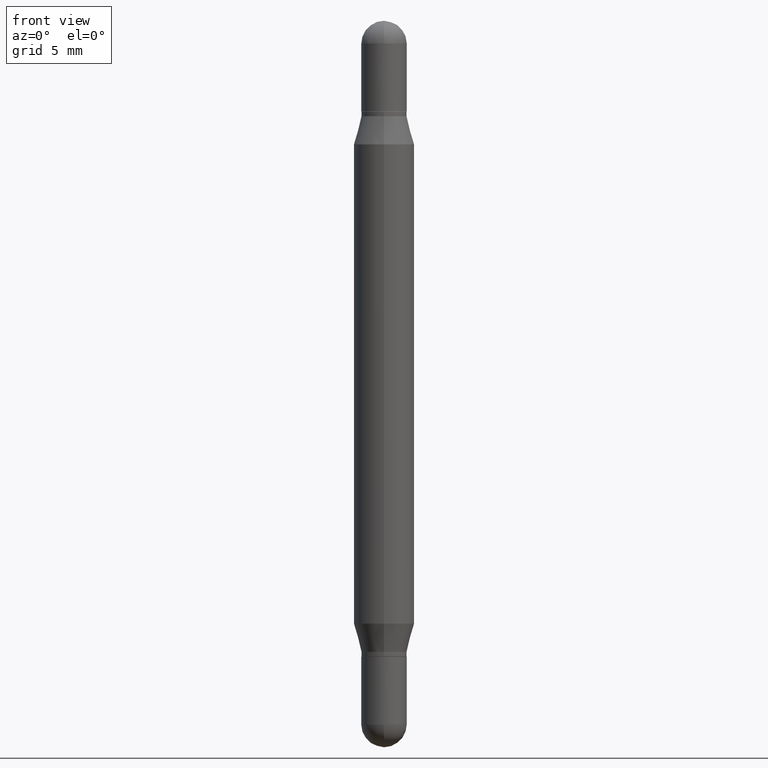
[diagram: clean part render]
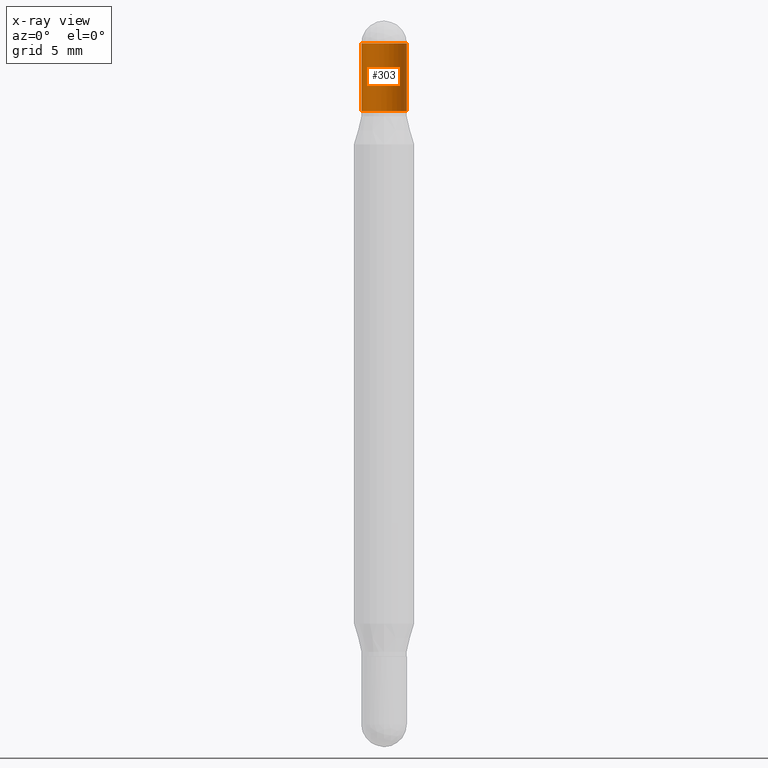
[diagram: x-ray — body ghosted, one internal face saturated and labeled with its STEP entity id]
A machine part, front view, then the same camera in x-ray: the body is ghosted and one INTERNAL B-rep face — a face not visible from any outside direction — is saturated and labeled: STEP entity #303.
In plain terms, the highlighted cylindrical surface (edge-blend (fillet) strip) has radius 1.1913 mm, axis along (-0, -0, -1).
Its self-contained STEP definition (entity closure, byte-faithful):
#9 = EDGE_CURVE ( 'NONE', #516, #371, #322, .T. ) ;
#32 = CYLINDRICAL_SURFACE ( 'NONE', #504, 0.04689999999999999725 ) ;
#59 = LINE ( 'NONE', #69, #292 ) ;
#69 = CARTESIAN_POINT ( 'NONE',  ( 0.04689999999999999725, -5.555822803949218252E-15, -1.500000000000000444 ) ) ;
#88 = ORIENTED_EDGE ( 'NONE', *, *, #985, .F. ) ;
#91 = CARTESIAN_POINT ( 'NONE',  ( 3.553510722267622201E-29, -1.720940724002502970E-16, -0.04690000000000053154 ) ) ;
#93 = DIRECTION ( 'NONE',  ( 1.000000000000000000, -6.982962677686266711E-15, 0.000000000000000000 ) ) ;
#130 = CARTESIAN_POINT ( 'NONE',  ( 3.553510722267622201E-29, -1.720940724002502970E-16, -0.04690000000000053154 ) ) ;
#200 = CARTESIAN_POINT ( 'NONE',  ( 3.210900542521084585E-29, -6.595880592238425060E-16, -0.1870000000000002216 ) ) ;
#207 = VECTOR ( 'NONE', #1025, 39.37007874015748143 ) ;
#228 = AXIS2_PLACEMENT_3D ( 'NONE', #91, #677, #93 ) ;
#277 = VERTEX_POINT ( 'NONE', #666 ) ;
#284 = DIRECTION ( 'NONE',  ( -2.445468806185136877E-29, -3.479614466977828648E-15, -1.000000000000000000 ) ) ;
#292 = VECTOR ( 'NONE', #284, 39.37007874015748143 ) ;
#303 = ADVANCED_FACE ( 'NONE', ( #636 ), #32, .T. ) ;
#306 = CARTESIAN_POINT ( 'NONE',  ( 0.04689999999999999725, -9.870890088073285070E-16, -0.1870000000000002216 ) ) ;
#322 = CIRCLE ( 'NONE', #946, 0.04689999999999999725 ) ;
#346 = ORIENTED_EDGE ( 'NONE', *, *, #849, .F. ) ;
#361 = DIRECTION ( 'NONE',  ( 1.000000000000000000, -6.982962677686266711E-15, 0.000000000000000000 ) ) ;
#371 = VERTEX_POINT ( 'NONE', #662 ) ;
#435 = DIRECTION ( 'NONE',  ( 2.445468806185136597E-29, 3.479614466977828254E-15, 1.000000000000000000 ) ) ;
#494 = CARTESIAN_POINT ( 'NONE',  ( -0.04689999999999999725, -9.408370971656128076E-17, -0.04690000000000053154 ) ) ;
#504 = AXIS2_PLACEMENT_3D ( 'NONE', #708, #544, #1064 ) ;
#507 = ORIENTED_EDGE ( 'NONE', *, *, #512, .T. ) ;
#509 = AXIS2_PLACEMENT_3D ( 'NONE', #130, #710, #540 ) ;
#512 = EDGE_CURVE ( 'NONE', #277, #516, #59, .T. ) ;
#516 = VERTEX_POINT ( 'NONE', #306 ) ;
#540 = DIRECTION ( 'NONE',  ( 1.000000000000000000, -6.982962677686266711E-15, 0.000000000000000000 ) ) ;
#544 = DIRECTION ( 'NONE',  ( -2.445468806185136597E-29, -3.479614466977828254E-15, -1.000000000000000000 ) ) ;
#558 = CIRCLE ( 'NONE', #228, 0.04689999999999999725 ) ;
#636 = FACE_OUTER_BOUND ( 'NONE', #659, .T. ) ;
#640 = ORIENTED_EDGE ( 'NONE', *, *, #791, .F. ) ;
#659 = EDGE_LOOP ( 'NONE', ( #640, #88, #346, #507, #952 ) ) ;
#662 = CARTESIAN_POINT ( 'NONE',  ( -0.04689999999999999725, -9.408370971656158891E-17, -0.1870000000000002216 ) ) ;
#666 = CARTESIAN_POINT ( 'NONE',  ( 0.04689999999999999725, -7.433420153955320943E-16, -0.04690000000000053154 ) ) ;
#670 = LINE ( 'NONE', #749, #207 ) ;
#677 = DIRECTION ( 'NONE',  ( 2.445468806185136597E-29, 3.479614466977828254E-15, 1.000000000000000000 ) ) ;
#684 = VERTEX_POINT ( 'NONE', #714 ) ;
#703 = CIRCLE ( 'NONE', #509, 0.04689999999999999725 ) ;
#708 = CARTESIAN_POINT ( 'NONE',  ( 0.000000000000000000, -5.228321854365732350E-15, -1.500000000000000444 ) ) ;
#710 = DIRECTION ( 'NONE',  ( 2.445468806185136597E-29, 3.479614466977828254E-15, 1.000000000000000000 ) ) ;
#711 = VERTEX_POINT ( 'NONE', #494 ) ;
#714 = CARTESIAN_POINT ( 'NONE',  ( 3.217573560955207797E-16, 0.04689999999999990010, -0.04690000000000069114 ) ) ;
#749 = CARTESIAN_POINT ( 'NONE',  ( -0.04689999999999999725, -4.906564498270247118E-15, -1.500000000000000444 ) ) ;
#791 = EDGE_CURVE ( 'NONE', #711, #371, #670, .T. ) ;
#849 = EDGE_CURVE ( 'NONE', #277, #684, #558, .T. ) ;
#946 = AXIS2_PLACEMENT_3D ( 'NONE', #200, #435, #361 ) ;
#952 = ORIENTED_EDGE ( 'NONE', *, *, #9, .T. ) ;
#985 = EDGE_CURVE ( 'NONE', #684, #711, #703, .T. ) ;
#1025 = DIRECTION ( 'NONE',  ( -2.445468806185136877E-29, -3.479614466977828648E-15, -1.000000000000000000 ) ) ;
#1064 = DIRECTION ( 'NONE',  ( 1.000000000000000000, -6.982962677686277755E-15, 0.000000000000000000 ) ) ;